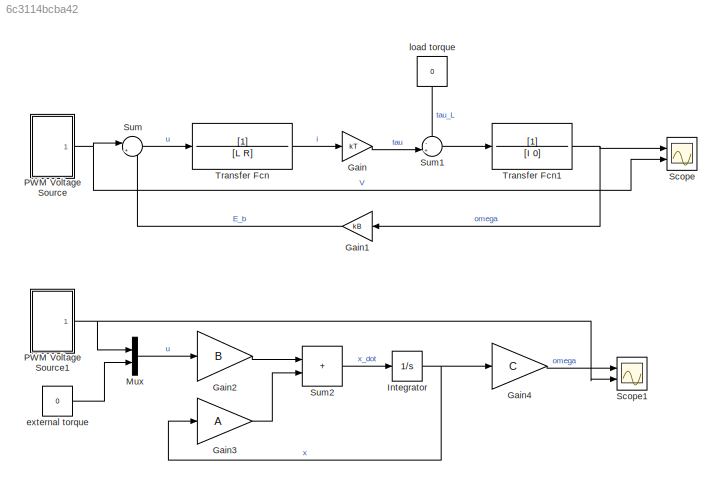
MODEL slx_6c3114bcba42
KIND model
CONFIG AbsTol = auto
CONFIG EnableMultiTasking = off
CONFIG FixedStep = auto
CONFIG MaxStep = auto
CONFIG MinStep = auto
CONFIG RelTol = 1e-3
CONFIG SampleTimeConstraint = Unconstrained
CONFIG SolverName = VariableStepAuto
CONFIG StartTime = 0.0
CONFIG StopTime = 4
WORKSPACE source: MATLAB code (in-file)
WORKSPACE R = 1.71
WORKSPACE L = 1.1*10^-4  (= 0.00011)
WORKSPACE kT = 5.9*10^-3  (= 0.0059)
WORKSPACE kB = 2.75*10^-4  (= 0.000275)
WORKSPACE I = 3.88*10^-7  (= 3.88e-07)
WORKSPACE code: B = [0, -1/I; 1/L, 0];
WORKSPACE code: A = [0, kT/I; -kB/L, -R/L];
WORKSPACE C = [1, 0]
BLOCK [Gain] Gain
  Gain = kT
BLOCK [Gain] Gain1
  Gain = kB
  NameLocation = top
BLOCK [Gain] Gain2
  Gain = B
  Multiplication = Matrix(K*u) (u vector)
BLOCK [Gain] Gain3
  Gain = A
  Multiplication = Matrix(K*u) (u vector)
BLOCK [Gain] Gain4
  Gain = C
  Multiplication = Matrix(K*u) (u vector)
BLOCK [Integrator] Integrator
  Ports = [1, 1]
BLOCK [Mux] Mux
  DisplayOption = bar
  Inputs = 2
  Ports = [2, 1]
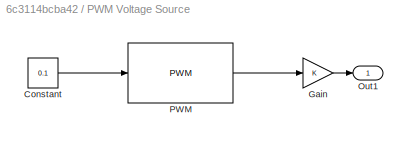
BLOCK [SubSystem] PWM Voltage Source
  Ports = [0, 1]
  RequestExecContextInheritance = off
BLOCK [Constant] PWM Voltage Source/Constant
  Value = 0.1
BLOCK [Gain] PWM Voltage Source/Gain
BLOCK [Outport] PWM Voltage Source/Out1
BLOCK [Reference] PWM Voltage Source/PWM  REF=simulink/Discontinuities/PWM
  DisableCoverage = on
  Ports = [1, 1]
  SourceBlock = simulink/Discontinuities/PWM
  SourceProductBaseCode = SL
  SourceType = PWM
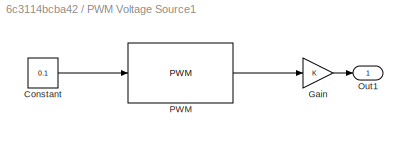
BLOCK [SubSystem] PWM Voltage Source1
  Ports = [0, 1]
  RequestExecContextInheritance = off
BLOCK [Constant] PWM Voltage Source1/Constant
  Value = 0.1
BLOCK [Gain] PWM Voltage Source1/Gain
BLOCK [Outport] PWM Voltage Source1/Out1
BLOCK [Reference] PWM Voltage Source1/PWM  REF=simulink/Discontinuities/PWM
  DisableCoverage = on
  Ports = [1, 1]
  SourceBlock = simulink/Discontinuities/PWM
  SourceProductBaseCode = SL
  SourceType = PWM
BLOCK [Scope] Scope
  Floating = off
  NumInputPorts = 2
  Ports = [2]
  ScopeSpecificationString = Simulink.scopes.TimeScopeBlockCfg('CurrentConfiguration', extmgr.ConfigurationSet(extmgr.Configuration('Core','General UI',true,'FigureColor',[1 1 1]),extmgr.Configuration('Core','Source UI',true),extmgr.Configuration('Sources','WiredSimulink',true),extmgr.Configuration('Visuals','Time Domain',true,'SerializedDisplays',{struct('MinYLimReal','-45.48715','MaxYLimReal','409.38437','YLabelReal','','Mi...<+1703ch>
BLOCK [Scope] Scope1
  Floating = off
  NumInputPorts = 2
  Ports = [2]
  ScopeSpecificationString = Simulink.scopes.TimeScopeBlockCfg('CurrentConfiguration', extmgr.ConfigurationSet(extmgr.Configuration('Core','General UI',true,'FigureColor',[1 1 1]),extmgr.Configuration('Core','Source UI',true),extmgr.Configuration('Sources','WiredSimulink',true,'DataLoggingVariableName','ScopeData1'),extmgr.Configuration('Visuals','Time Domain',true,'SerializedDisplays',{struct('MinYLimReal','-45.48788','MaxYL...<+1740ch>
BLOCK [Sum] Sum
  Inputs = |+-
  Ports = [2, 1]
BLOCK [Sum] Sum1
  Inputs = -+|
  Ports = [2, 1]
BLOCK [Sum] Sum2
  IconShape = rectangular
  Ports = [2, 1]
BLOCK [TransferFcn] Transfer Fcn
  Denominator = [L R]
BLOCK [TransferFcn] Transfer Fcn1
  Denominator = [I 0]
BLOCK [Constant] external torque
  Value = 0
BLOCK [Constant] load torque
  NameLocation = left
  Value = 0
LINE Gain1:1 -> Sum:2
LINE Gain2:1 -> Sum2:1
LINE Gain3:1 -> Sum2:2
LINE Gain4:1 -> Scope1:1
LINE Gain:1 -> Sum1:2
NET Integrator:1 -> Gain3:1, Gain4:1
LINE Mux:1 -> Gain2:1
LINE PWM Voltage Source/Constant:1 -> PWM Voltage Source/PWM:1
LINE PWM Voltage Source/Gain:1 -> PWM Voltage Source/Out1:1
LINE PWM Voltage Source/PWM:1 -> PWM Voltage Source/Gain:1
LINE PWM Voltage Source1/Constant:1 -> PWM Voltage Source1/PWM:1
LINE PWM Voltage Source1/Gain:1 -> PWM Voltage Source1/Out1:1
LINE PWM Voltage Source1/PWM:1 -> PWM Voltage Source1/Gain:1
NET PWM Voltage Source1:1 -> Mux:1, Scope1:2
NET PWM Voltage Source:1 -> Scope:2, Sum:1
LINE Sum1:1 -> Transfer Fcn1:1
LINE Sum2:1 -> Integrator:1
LINE Sum:1 -> Transfer Fcn:1
NET Transfer Fcn1:1 -> Gain1:1, Scope:1
LINE Transfer Fcn:1 -> Gain:1
LINE external torque:1 -> Mux:2
LINE load torque:1 -> Sum1:1
note: NET lines group one-source signal fan-out (src -> all destinations, sorted); 1:1 wires keep LINE
